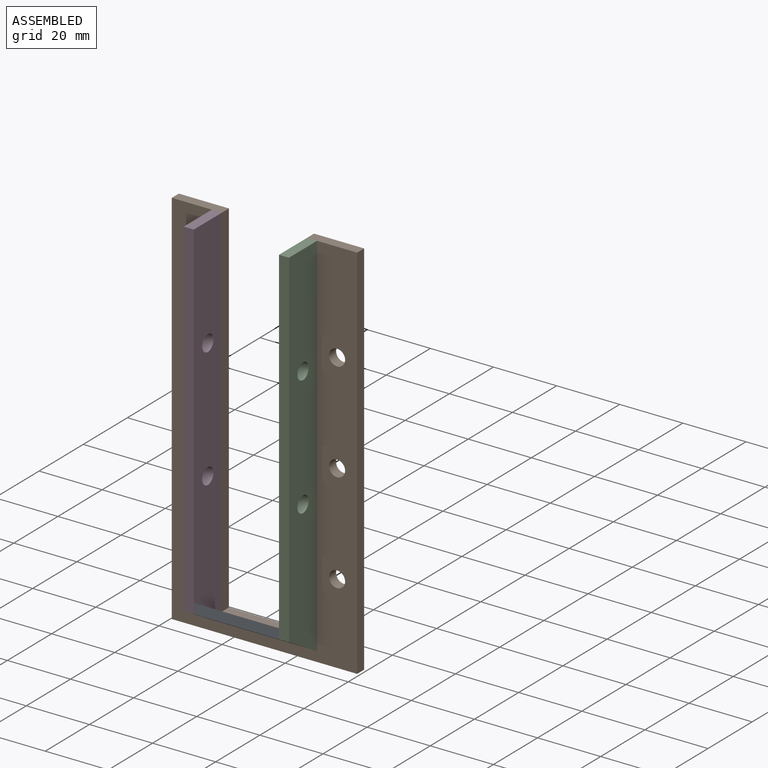
[diagram: assembled view]
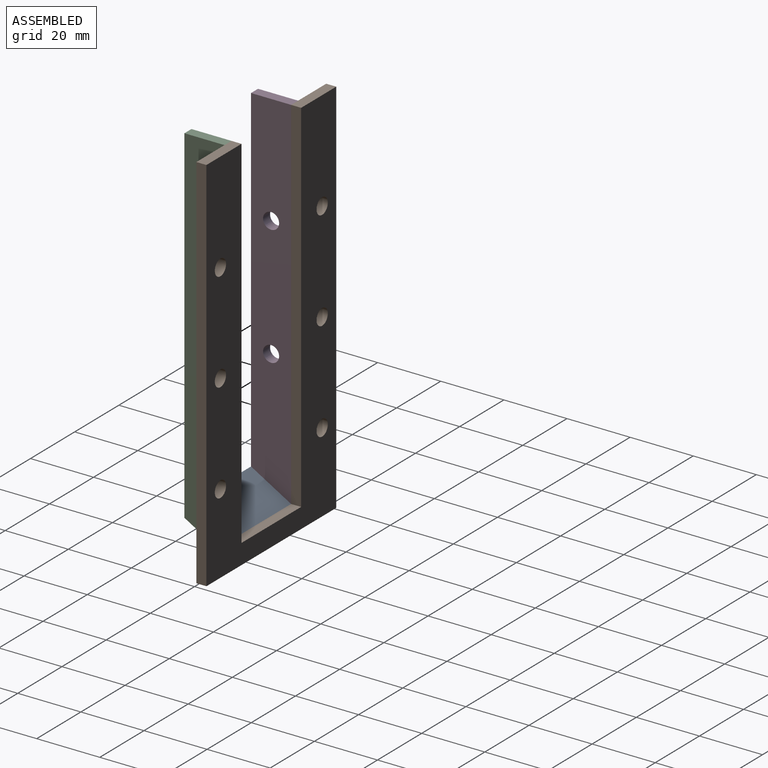
[diagram: assembled view, second angle]
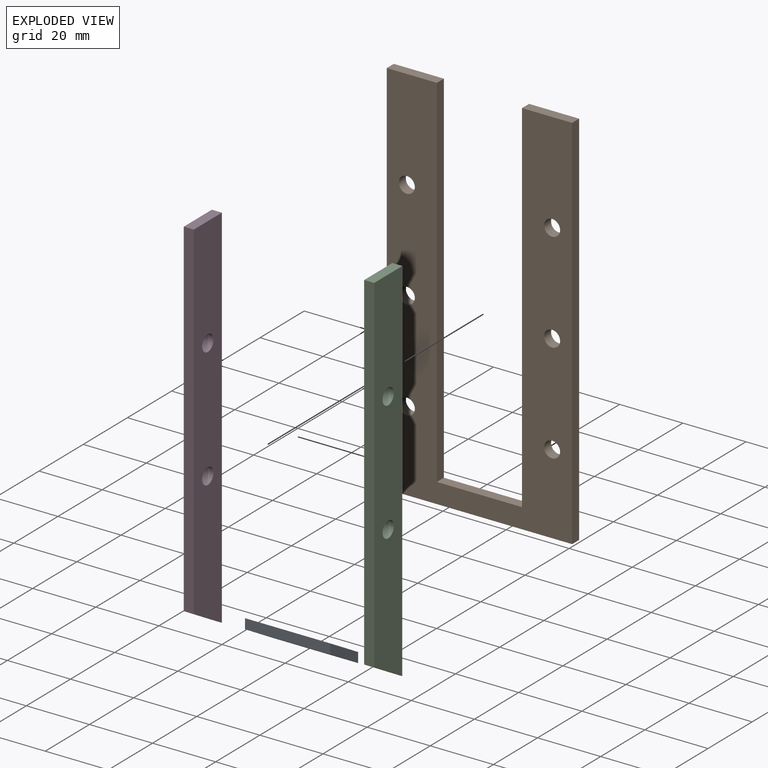
[diagram: exploded view]
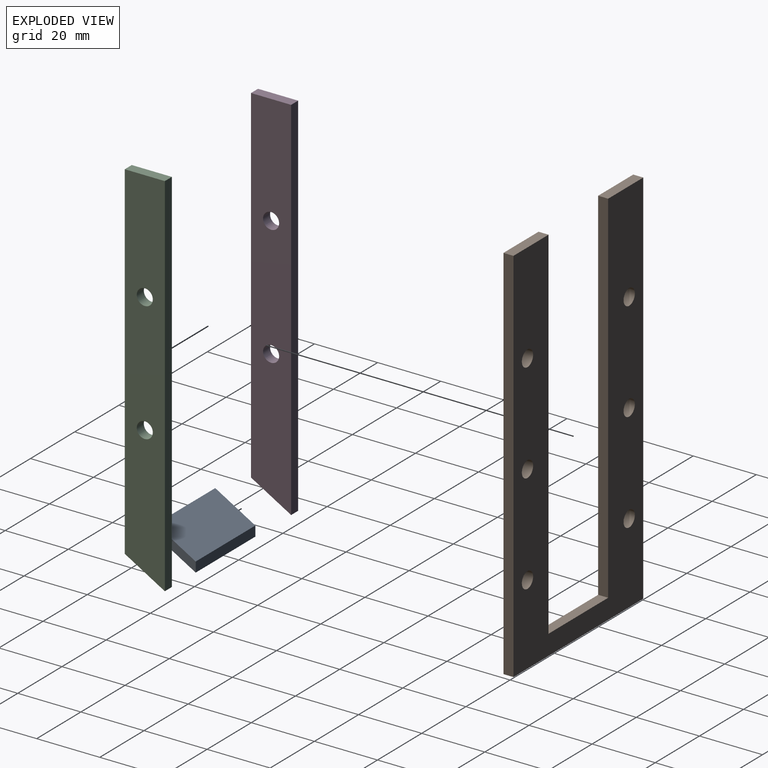
[diagram: exploded view, second angle]
ASSEMBLY  parts=4 mates=3
PART A: 6 faces, bbox 27x12.7x10.5 mm
  f0: plane 26.99x3.18mm, normal (0,-1,0), area 85.7mm2, adj f1,f3,f4,f5
  f1: plane 26.99x12.7mm, normal (0,-0.5,-0.87), area 395.8mm2, adj f0,f2,f4,f5
  f2: plane 26.99x3.18mm, normal (0,1,0), area 85.7mm2, adj f1,f3,f4,f5
  f3: plane 26.99x12.7mm, normal (0,0.5,0.87), area 395.8mm2, adj f0,f2,f4,f5
  f4: plane 12.7x10.51mm, normal (1,0,0), area 40.3mm2, adj f0,f1,f2,f3
  f5: plane 12.7x10.51mm, normal (-1,0,0), area 40.3mm2, adj f0,f1,f2,f3
PART B: 16 faces, bbox 58.7x3.2x120.7 mm
  f0: plane 15.88x3.18mm, normal (0,0,1), area 50.4mm2, adj f1,f12,f14,f15
  f1: plane 120.65x3.18mm, normal (-1,0,0), area 383.1mm2, adj f0,f2,f14,f15
  f2: plane 58.74x3.18mm, normal (0,0,-1), area 186.5mm2, adj f1,f3,f14,f15
  f3: plane 120.65x3.18mm, normal (1,0,0), area 383.1mm2, adj f2,f4,f14,f15
  f4: plane 15.88x3.18mm, normal (0,0,1), area 50.4mm2, adj f3,f5,f14,f15
  f5: plane 114.3x3.18mm, normal (-1,0,0), area 362.9mm2, adj f4,f6,f14,f15
  f6: plane 26.99x3.18mm, normal (0,0,1), area 85.7mm2, adj f5,f12,f14,f15
  f7: cylinder r=2.54mm len=5.08mm, axis (0,1,0), area 50.7mm2, adj f14,f15
  f8: cylinder r=2.54mm len=5.08mm, axis (0,1,0), area 50.7mm2, adj f14,f15
  f9: cylinder r=2.54mm len=5.08mm, axis (0,1,0), area 50.7mm2, adj f14,f15
  f10: cylinder r=2.54mm len=5.08mm, axis (0,1,0), area 50.7mm2, adj f14,f15
  f11: cylinder r=2.54mm len=5.08mm, axis (0,1,0), area 50.7mm2, adj f14,f15
  f12: plane 114.3x3.18mm, normal (1,0,0), area 362.9mm2, adj f0,f6,f14,f15
  f13: cylinder r=2.54mm len=5.08mm, axis (0,1,0), area 50.7mm2, adj f14,f15
  f14: plane 120.65x58.74mm, normal (0,-1,0), area 3880.4mm2, adj f0,f1,f2,f3,f4,f5,f6,f7
  f15: plane 120.65x58.74mm, normal (0,1,0), area 3880.4mm2, adj f0,f1,f2,f3,f4,f5,f6,f7
PART C: 8 faces, bbox 3.2x12.7x117.5 mm
  f0: plane 12.7x3.18mm, normal (0,0,1), area 40.3mm2, adj f1,f5,f6,f7
  f1: plane 110.14x3.18mm, normal (0,-1,0), area 349.7mm2, adj f0,f2,f6,f7
  f2: plane 12.7x7.33mm, normal (0,-0.5,-0.87), area 46.6mm2, adj f1,f5,f6,f7
  f3: cylinder r=2.54mm len=5.08mm, axis (-1,0,0), area 50.7mm2, adj f6,f7
  f4: cylinder r=2.54mm len=5.08mm, axis (-1,0,0), area 50.7mm2, adj f6,f7
  f5: plane 117.48x3.18mm, normal (0,1,0), area 373mm2, adj f0,f2,f6,f7
  f6: plane 117.48x12.7mm, normal (1,0,0), area 1404.8mm2, adj f0,f1,f2,f3,f4,f5
  f7: plane 117.48x12.7mm, normal (-1,0,0), area 1404.8mm2, adj f0,f1,f2,f3,f4,f5
PART D: same geometry as C
PLACE A t=(-41.25,-82.78,-14)mm
PLACE B t=(7.43,-55.08,78.11)mm
PLACE C t=(-14.26,-60.43,6.64)mm
PLACE D t=(-44.43,-60.43,6.64)mm
MATE fastened D.f6 <-> A.f5  axis (1,0,0) through (-41.25,-70.96,-22.79)mm
MATE fastened B.f14 <-> D.f5  axis (0,-1,0) through (-41.25,-58.26,87.35)mm
MATE fastened C.f7 <-> A.f4  axis (-1,0,0) through (-14.26,-64.61,-26.46)mm
